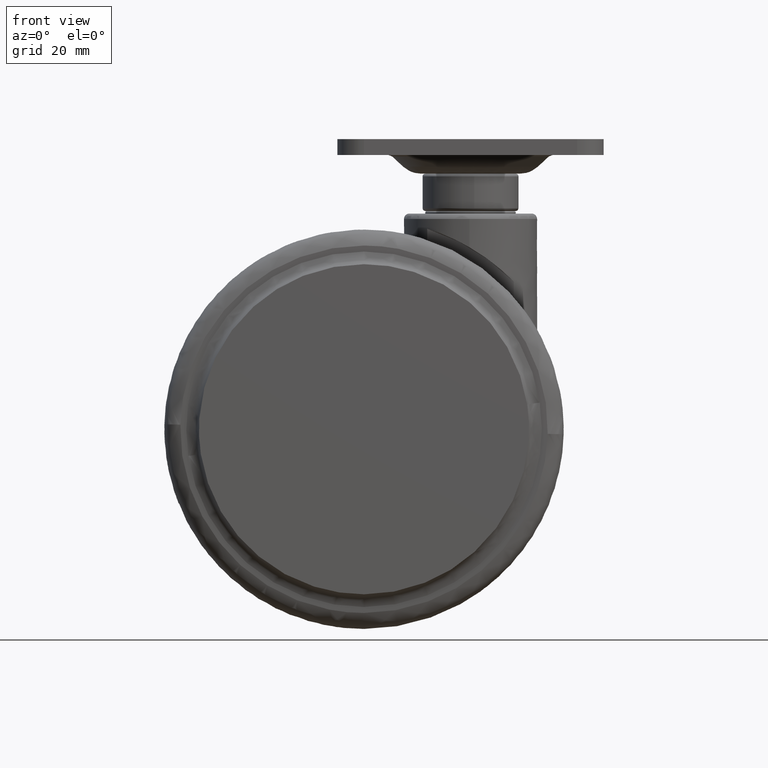
[diagram: clean part render]
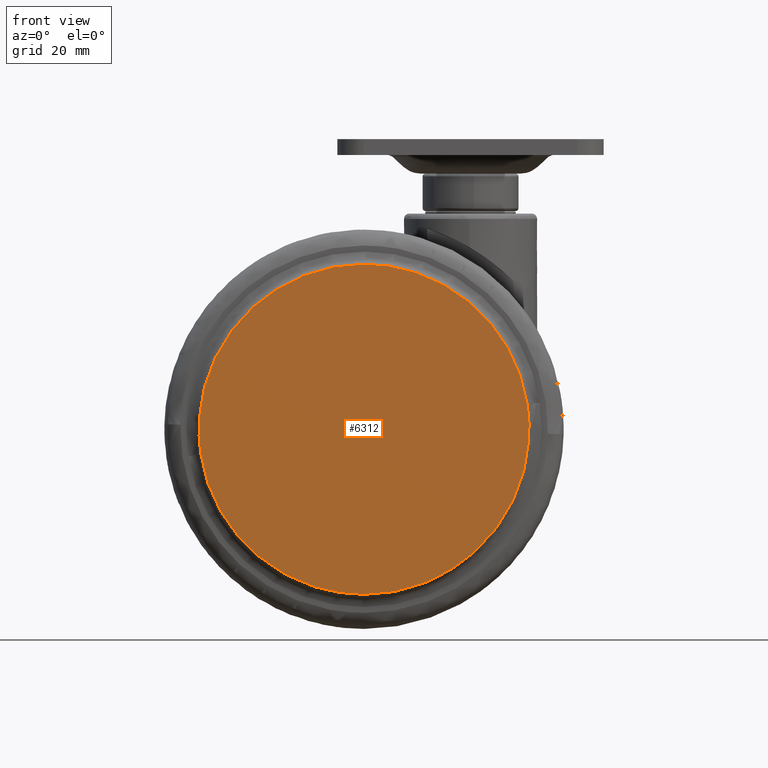
[diagram: same view with one face highlighted and labeled with its STEP entity id]
A machine part, front view. The second image highlights one B-rep face of the part: STEP entity #6312.
In plain terms, the highlighted face is a freeform B-spline surface patch.
Its self-contained STEP definition (entity closure, byte-faithful):
#6172=CARTESIAN_POINT('',(10.648204086883091,-23.499999999895419,-35.843006737246121));
#6173=VERTEX_POINT('',#6172);
#6187=CARTESIAN_POINT('',(-20.0,-23.500000000000021,-71.500000000000185));
#6188=VERTEX_POINT('',#6187);
#6189=CARTESIAN_POINT('',(-20.0,-23.500000000000021,-71.500000000000185));
#6190=CARTESIAN_POINT('',(11.000000000003924,-23.499999999955062,-71.499999999999503));
#6191=CARTESIAN_POINT('',(11.000000000008489,-23.499999999902759,-40.499999999998721));
#6192=CARTESIAN_POINT('',(11.000000000008836,-23.499999999898815,-38.158215786108393));
#6193=CARTESIAN_POINT('',(10.648204086883100,-23.499999999895422,-35.843006737246121));
#6201=(BOUNDED_CURVE()B_SPLINE_CURVE(2,(#6189,#6190,#6191,#6192,#6193),.UNSPECIFIED.,.F.,.U.)B_SPLINE_CURVE_WITH_KNOTS((3,2,3),(0.0,0.250000000000000,0.275897584623515),.UNSPECIFIED.)CURVE()GEOMETRIC_REPRESENTATION_ITEM()RATIONAL_B_SPLINE_CURVE((1.0,0.707106781186548,1.0,0.969659092320500,0.945604234434473))REPRESENTATION_ITEM(''));
#6202=EDGE_CURVE('',#6188,#6173,#6201,.T.);
#6204=CARTESIAN_POINT('',(-50.648204086883098,-23.499999999895419,-45.156993262753879));
#6205=VERTEX_POINT('',#6204);
#6206=CARTESIAN_POINT('',(-50.648204086883098,-23.499999999895422,-45.156993262753879));
#6207=CARTESIAN_POINT('',(-46.645385372011432,-23.499999999947718,-71.500000000000796));
#6208=CARTESIAN_POINT('',(-20.0,-23.500000000000021,-71.500000000000185));
#6216=(BOUNDED_CURVE()B_SPLINE_CURVE(2,(#6206,#6207,#6208),.UNSPECIFIED.,.F.,.U.)B_SPLINE_CURVE_WITH_KNOTS((3,3),(0.775897584623515,1.0),.UNSPECIFIED.)CURVE()GEOMETRIC_REPRESENTATION_ITEM()RATIONAL_B_SPLINE_CURVE((0.945604234434473,0.737447688866048,1.0))REPRESENTATION_ITEM(''));
#6217=EDGE_CURVE('',#6205,#6188,#6216,.T.);
#6266=CARTESIAN_POINT('',(-20.0,-23.500000000000000,-9.500000000000002));
#6267=VERTEX_POINT('',#6266);
#6268=CARTESIAN_POINT('',(-20.0,-23.500000000000000,-9.500000000000002));
#6269=CARTESIAN_POINT('',(-51.000000000003922,-23.499999999955062,-9.500000000000597));
#6270=CARTESIAN_POINT('',(-51.000000000008491,-23.499999999902769,-40.500000000001293));
#6271=CARTESIAN_POINT('',(-51.000000000008839,-23.499999999898819,-42.841784213891614));
#6272=CARTESIAN_POINT('',(-50.648204086883098,-23.499999999895422,-45.156993262753879));
#6280=(BOUNDED_CURVE()B_SPLINE_CURVE(2,(#6268,#6269,#6270,#6271,#6272),.UNSPECIFIED.,.F.,.U.)B_SPLINE_CURVE_WITH_KNOTS((3,2,3),(0.500000000000000,0.750000000000000,0.775897584623515),.UNSPECIFIED.)CURVE()GEOMETRIC_REPRESENTATION_ITEM()RATIONAL_B_SPLINE_CURVE((1.0,0.707106781186548,1.0,0.969659092320500,0.945604234434473))REPRESENTATION_ITEM(''));
#6281=EDGE_CURVE('',#6267,#6205,#6280,.T.);
#6283=CARTESIAN_POINT('',(10.648204086883100,-23.499999999895422,-35.843006737246121));
#6284=CARTESIAN_POINT('',(6.645385372011443,-23.499999999947708,-9.499999999999311));
#6285=CARTESIAN_POINT('',(-20.0,-23.500000000000000,-9.500000000000002));
#6293=(BOUNDED_CURVE()B_SPLINE_CURVE(2,(#6283,#6284,#6285),.UNSPECIFIED.,.F.,.U.)B_SPLINE_CURVE_WITH_KNOTS((3,3),(0.275897584623515,0.500000000000000),.UNSPECIFIED.)CURVE()GEOMETRIC_REPRESENTATION_ITEM()RATIONAL_B_SPLINE_CURVE((0.945604234434473,0.737447688866047,1.0))REPRESENTATION_ITEM(''));
#6294=EDGE_CURVE('',#6173,#6267,#6293,.T.);
#6301=CARTESIAN_POINT('',(-54.089121366670312,-23.500000000000000,-6.403100120168022));
#6302=CARTESIAN_POINT('',(-54.089121366670312,-23.500000000000000,-74.596901542801746));
#6303=CARTESIAN_POINT('',(14.089121920867020,-23.500000000000000,-6.403100120168022));
#6304=CARTESIAN_POINT('',(14.089121920867020,-23.500000000000000,-74.596901542801746));
#6305=B_SPLINE_SURFACE_WITH_KNOTS('',1,1,((#6301,#6303),(#6302,#6304)),.UNSPECIFIED.,.F.,.F.,.U.,(2,2),(2,2),(0.0,68.193801422633726),(0.0,68.178243287537327),.UNSPECIFIED.);
#6306=ORIENTED_EDGE('',*,*,#6202,.T.);
#6307=ORIENTED_EDGE('',*,*,#6294,.T.);
#6308=ORIENTED_EDGE('',*,*,#6281,.T.);
#6309=ORIENTED_EDGE('',*,*,#6217,.T.);
#6310=EDGE_LOOP('',(#6306,#6307,#6308,#6309));
#6311=FACE_OUTER_BOUND('',#6310,.T.);
#6312=ADVANCED_FACE('',(#6311),#6305,.T.);